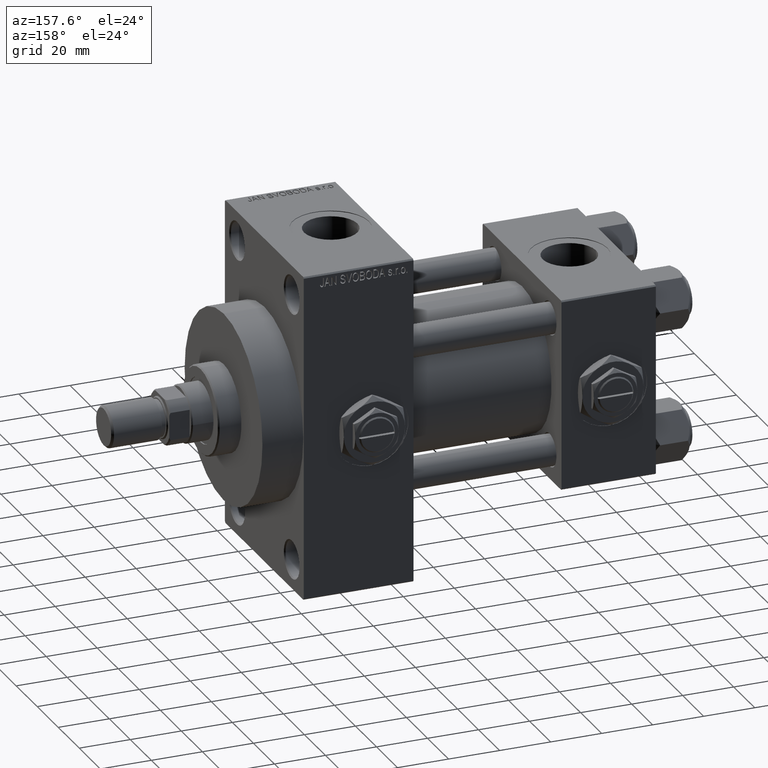
[diagram: clean part render]
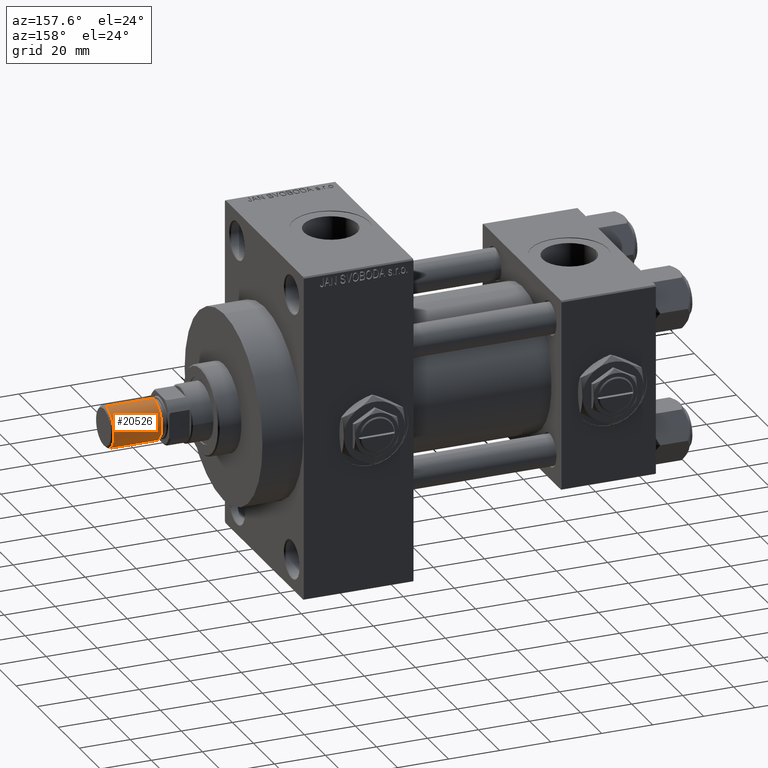
[diagram: same view with one face highlighted and labeled with its STEP entity id]
A machine part, auxiliary view. The second image highlights one B-rep face of the part: STEP entity #20526.
In plain terms, the highlighted cylindrical surface (edge-blend (fillet) strip) has radius 8 mm, axis along (1, -0, -0).
Its self-contained STEP definition (entity closure, byte-faithful):
#1323 = ORIENTED_EDGE ( 'NONE', *, *, #2574, .T. ) ;
#2201 = VERTEX_POINT ( 'NONE', #40029 ) ;
#2477 = DIRECTION ( 'NONE',  ( -1.000000000000000000, 0.000000000000000000, 0.000000000000000000 ) ) ;
#2574 = EDGE_CURVE ( 'NONE', #13723, #2201, #33806, .T. ) ;
#3944 = LINE ( 'NONE', #23283, #20326 ) ;
#4940 = CARTESIAN_POINT ( 'NONE',  ( 8.000000000000000000, 9.797174393178825657E-16, 0.8000000000000090372 ) ) ;
#9613 = DIRECTION ( 'NONE',  ( 1.000000000000000000, 0.000000000000000000, 0.000000000000000000 ) ) ;
#9779 = DIRECTION ( 'NONE',  ( -0.000000000000000000, -0.000000000000000000, -1.000000000000000000 ) ) ;
#9869 = DIRECTION ( 'NONE',  ( 0.000000000000000000, 0.000000000000000000, 1.000000000000000000 ) ) ;
#10722 = EDGE_CURVE ( 'NONE', #38485, #13723, #3944, .T. ) ;
#11163 = LINE ( 'NONE', #18682, #19688 ) ;
#12130 = AXIS2_PLACEMENT_3D ( 'NONE', #46411, #42623, #45912 ) ;
#13723 = VERTEX_POINT ( 'NONE', #4940 ) ;
#14315 = CARTESIAN_POINT ( 'NONE',  ( 8.000000000000000000, 9.797174393178825657E-16, 19.50000000000000000 ) ) ;
#15037 = EDGE_CURVE ( 'NONE', #19687, #2201, #11163, .T. ) ;
#15906 = EDGE_LOOP ( 'NONE', ( #23086, #28824, #1323, #33037 ) ) ;
#18307 = FACE_OUTER_BOUND ( 'NONE', #15906, .T. ) ;
#18682 = CARTESIAN_POINT ( 'NONE',  ( -8.000000000000000000, 0.000000000000000000, 19.50000000000000000 ) ) ;
#19687 = VERTEX_POINT ( 'NONE', #36802 ) ;
#19688 = VECTOR ( 'NONE', #22447, 1000.000000000000000 ) ;
#20326 = VECTOR ( 'NONE', #22537, 1000.000000000000000 ) ;
#20526 = ADVANCED_FACE ( 'NONE', ( #18307 ), #26111, .T. ) ;
#22447 = DIRECTION ( 'NONE',  ( -0.000000000000000000, -0.000000000000000000, -1.000000000000000000 ) ) ;
#22537 = DIRECTION ( 'NONE',  ( -0.000000000000000000, -0.000000000000000000, -1.000000000000000000 ) ) ;
#23086 = ORIENTED_EDGE ( 'NONE', *, *, #32447, .F. ) ;
#23283 = CARTESIAN_POINT ( 'NONE',  ( 8.000000000000000000, 9.797174393178825657E-16, 19.50000000000000000 ) ) ;
#26111 = CYLINDRICAL_SURFACE ( 'NONE', #26759, 8.000000000000000000 ) ;
#26759 = AXIS2_PLACEMENT_3D ( 'NONE', #40719, #9779, #2477 ) ;
#28824 = ORIENTED_EDGE ( 'NONE', *, *, #10722, .T. ) ;
#28966 = CARTESIAN_POINT ( 'NONE',  ( 0.000000000000000000, 0.000000000000000000, 19.50000000000000000 ) ) ;
#32447 = EDGE_CURVE ( 'NONE', #38485, #19687, #41517, .T. ) ;
#33037 = ORIENTED_EDGE ( 'NONE', *, *, #15037, .F. ) ;
#33806 = CIRCLE ( 'NONE', #12130, 8.000000000000000000 ) ;
#36671 = AXIS2_PLACEMENT_3D ( 'NONE', #28966, #9869, #9613 ) ;
#36802 = CARTESIAN_POINT ( 'NONE',  ( -8.000000000000000000, 0.000000000000000000, 19.50000000000000000 ) ) ;
#38485 = VERTEX_POINT ( 'NONE', #14315 ) ;
#40029 = CARTESIAN_POINT ( 'NONE',  ( -8.000000000000000000, 0.000000000000000000, 0.8000000000000090372 ) ) ;
#40719 = CARTESIAN_POINT ( 'NONE',  ( 0.000000000000000000, 0.000000000000000000, 19.50000000000000000 ) ) ;
#41517 = CIRCLE ( 'NONE', #36671, 8.000000000000000000 ) ;
#42623 = DIRECTION ( 'NONE',  ( -0.000000000000000000, -0.000000000000000000, 1.000000000000000000 ) ) ;
#45912 = DIRECTION ( 'NONE',  ( 1.000000000000000000, 0.000000000000000000, 0.000000000000000000 ) ) ;
#46411 = CARTESIAN_POINT ( 'NONE',  ( 0.000000000000000000, 0.000000000000000000, 0.8000000000000090372 ) ) ;